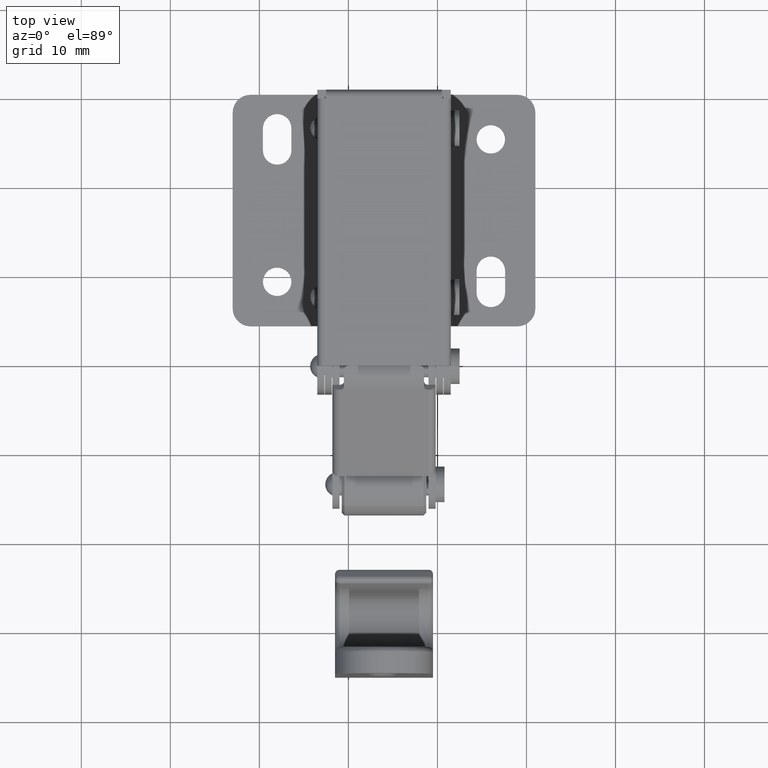
[diagram: clean part render]
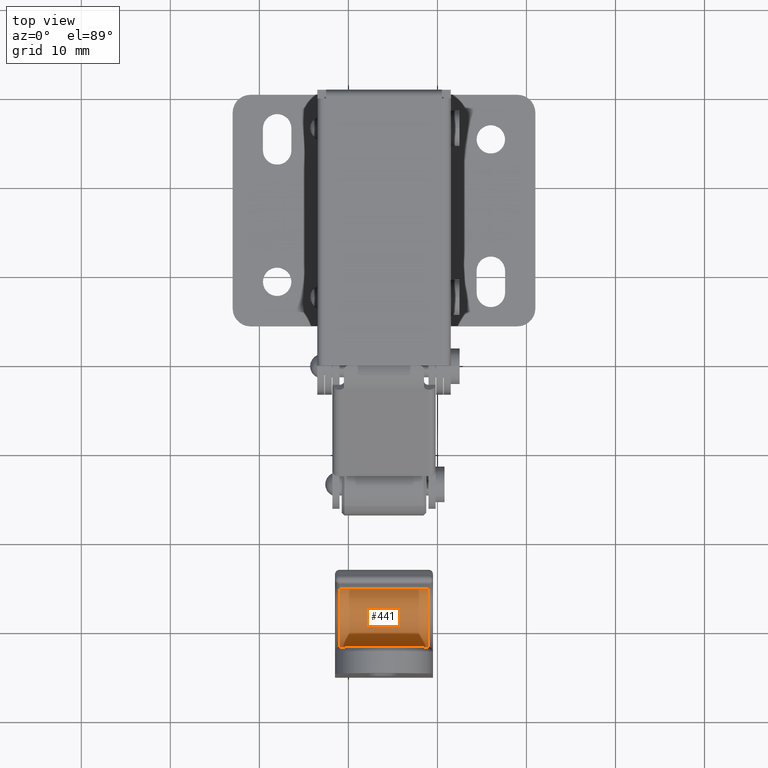
[diagram: same view with one face highlighted and labeled with its STEP entity id]
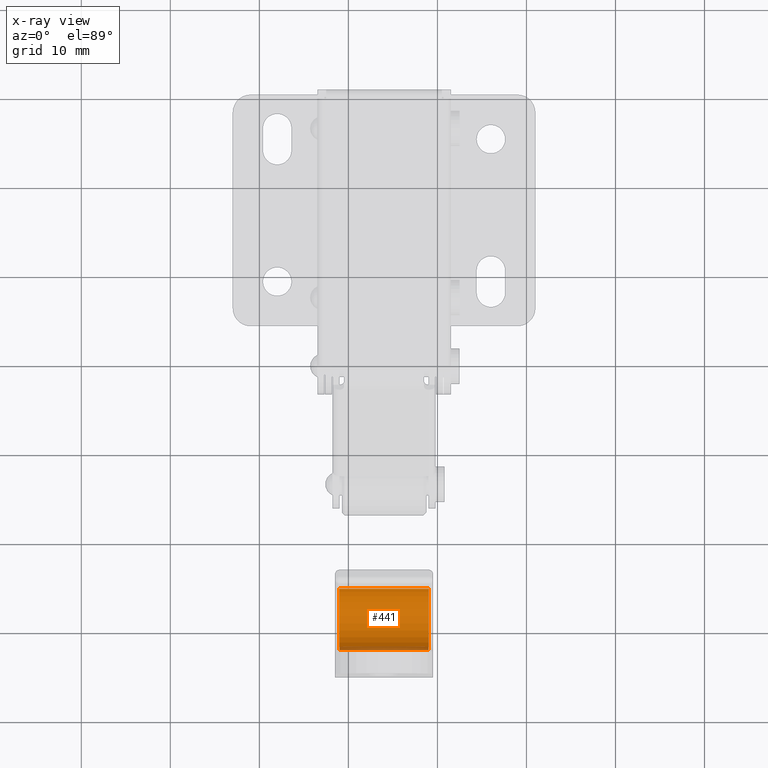
[diagram: x-ray of the same camera — body ghosted, the highlighted face saturated]
A machine part, top view. The second image highlights one B-rep face of the part: STEP entity #441.
The next image is the same camera in x-ray: the body ghosted, the highlighted face saturated — about 6% of this face is hidden behind the body in this view.
In plain terms, the highlighted cylindrical surface (edge-blend (fillet) strip) has radius 3.5 mm, axis along (-1, 0, 0).
Its self-contained STEP definition (entity closure, byte-faithful):
#441=ADVANCED_FACE('',(#2732),#2731,.F.);
#2731=CYLINDRICAL_SURFACE('',#4689,3.50000000000E+00);
#2732=FACE_OUTER_BOUND('',#4690,.T.);
#4686=CARTESIAN_POINT('',(9.94500000000E+02,-6.50000000000E+00,6.50000000000E+00));
#4687=DIRECTION('',(1.00000000000E+00,-0.00000000000E+00,-0.00000000000E+00));
#4688=DIRECTION('',(0.00000000000E+00,-1.21869343405E-01,9.92546151641E-01));
#4689=AXIS2_PLACEMENT_3D('',#4686,#4687,#4688);
#4690=EDGE_LOOP('',(#6141,#6142,#6143,#6144));
#6141=ORIENTED_EDGE('',*,*,#7053,.T.);
#6142=ORIENTED_EDGE('',*,*,#7003,.T.);
#6143=ORIENTED_EDGE('',*,*,#7052,.F.);
#6144=ORIENTED_EDGE('',*,*,#7012,.T.);
#7003=EDGE_CURVE('',#10554,#10261,#10555,.T.);
#7012=EDGE_CURVE('',#10606,#10593,#10613,.T.);
#7052=EDGE_CURVE('',#10606,#10261,#10868,.T.);
#7053=EDGE_CURVE('',#10593,#10554,#10874,.T.);
#10261=VERTEX_POINT('',#13849);
#10554=VERTEX_POINT('',#14031);
#10555=CIRCLE('',#14035,3.50000000000E+00);
#10593=VERTEX_POINT('',#14057);
#10606=VERTEX_POINT('',#14065);
#10613=CIRCLE('',#14073,3.50000000000E+00);
#10868=LINE('',#14225,#14226);
#10874=LINE('',#14228,#14229);
#13849=CARTESIAN_POINT('',(-5.00000000000E+00,-9.88074039201E+00,5.59413334214E+00));
#14031=CARTESIAN_POINT('',(-5.00000000000E+00,-3.00000000000E+00,6.50000000000E+00));
#14032=CARTESIAN_POINT('',(-5.00000000000E+00,-6.50000000000E+00,6.50000000000E+00));
#14033=DIRECTION('',(-1.00000000000E+00,-0.00000000000E+00,0.00000000000E+00));
#14034=DIRECTION('',(0.00000000000E+00,-0.00000000000E+00,1.00000000000E+00));
#14035=AXIS2_PLACEMENT_3D('',#14032,#14033,#14034);
#14057=CARTESIAN_POINT('',(5.00000000000E+00,-3.00000000000E+00,6.50000000000E+00));
#14065=CARTESIAN_POINT('',(5.00000000000E+00,-9.88074039201E+00,5.59413334214E+00));
#14070=CARTESIAN_POINT('',(5.00000000000E+00,-6.50000000000E+00,6.50000000000E+00));
#14071=DIRECTION('',(1.00000000000E+00,0.00000000000E+00,0.00000000000E+00));
#14072=DIRECTION('',(0.00000000000E+00,-0.00000000000E+00,1.00000000000E+00));
#14073=AXIS2_PLACEMENT_3D('',#14070,#14071,#14072);
#14225=CARTESIAN_POINT('',(5.00000000000E+00,-9.88074039201E+00,5.59413334214E+00));
#14226=VECTOR('',#14227,1.00000000000E+01);
#14227=DIRECTION('',(-1.00000000000E+00,0.00000000000E+00,0.00000000000E+00));
#14228=CARTESIAN_POINT('',(5.00000000000E+00,-3.00000000000E+00,6.50000000000E+00));
#14229=VECTOR('',#14230,1.00000000000E+01);
#14230=DIRECTION('',(-1.00000000000E+00,0.00000000000E+00,0.00000000000E+00));